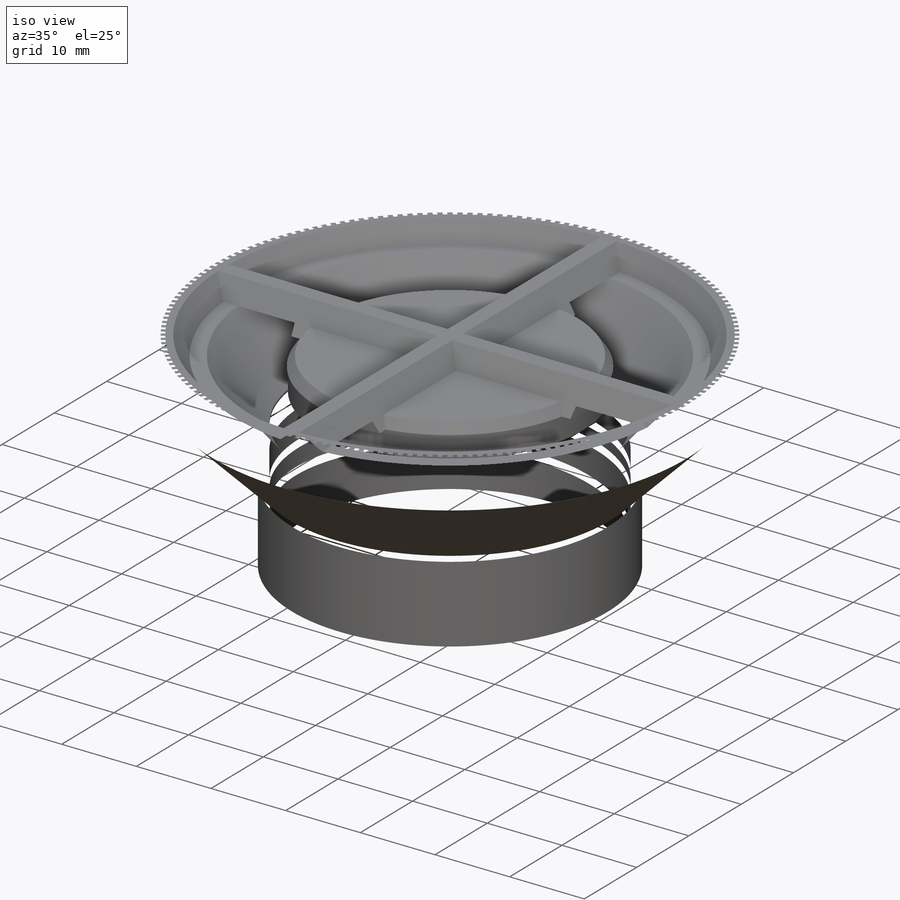
[diagram: iso view]
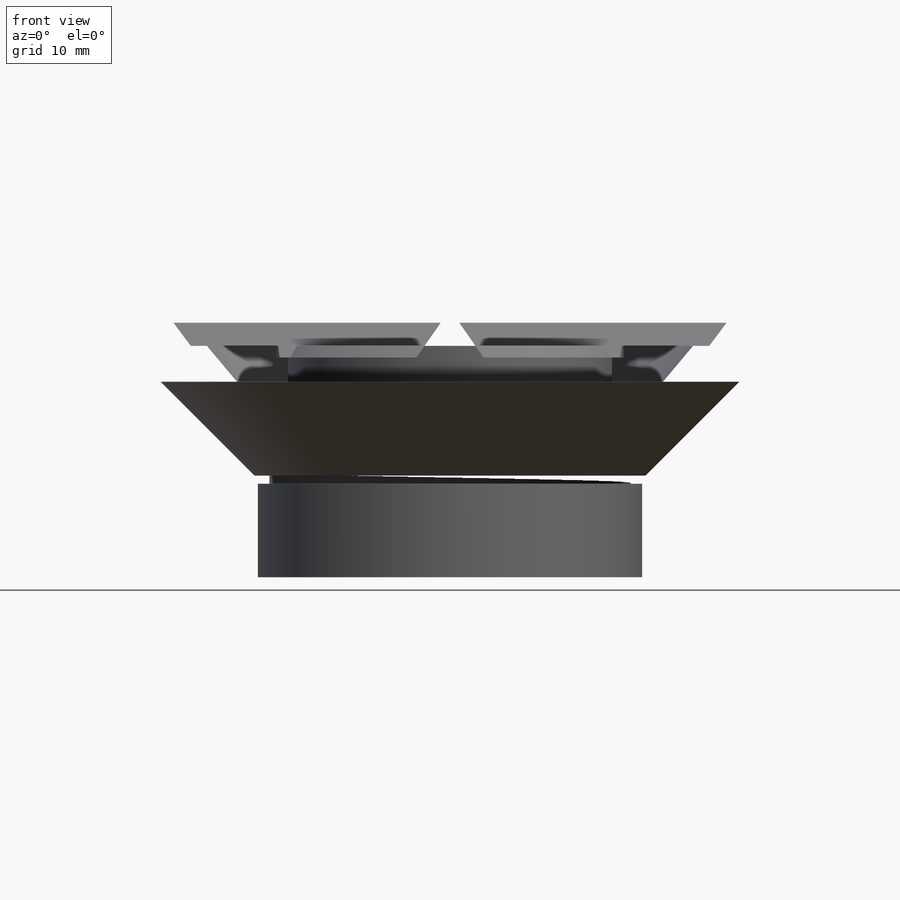
[diagram: front view]
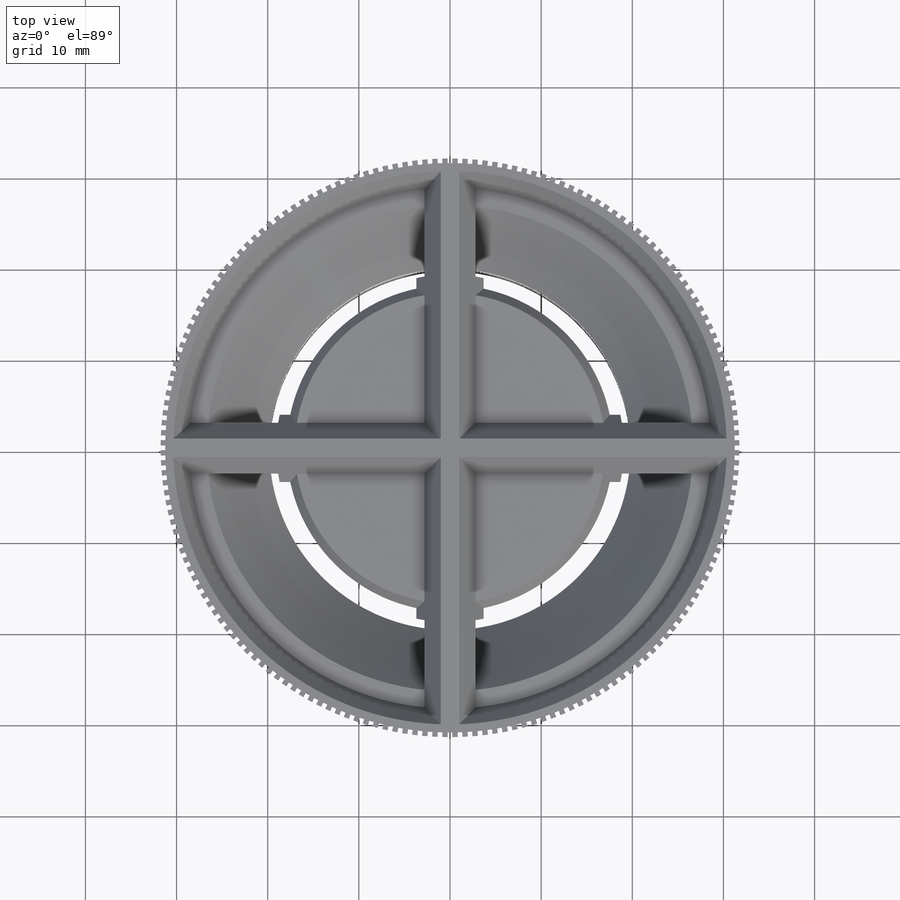
[diagram: top view]
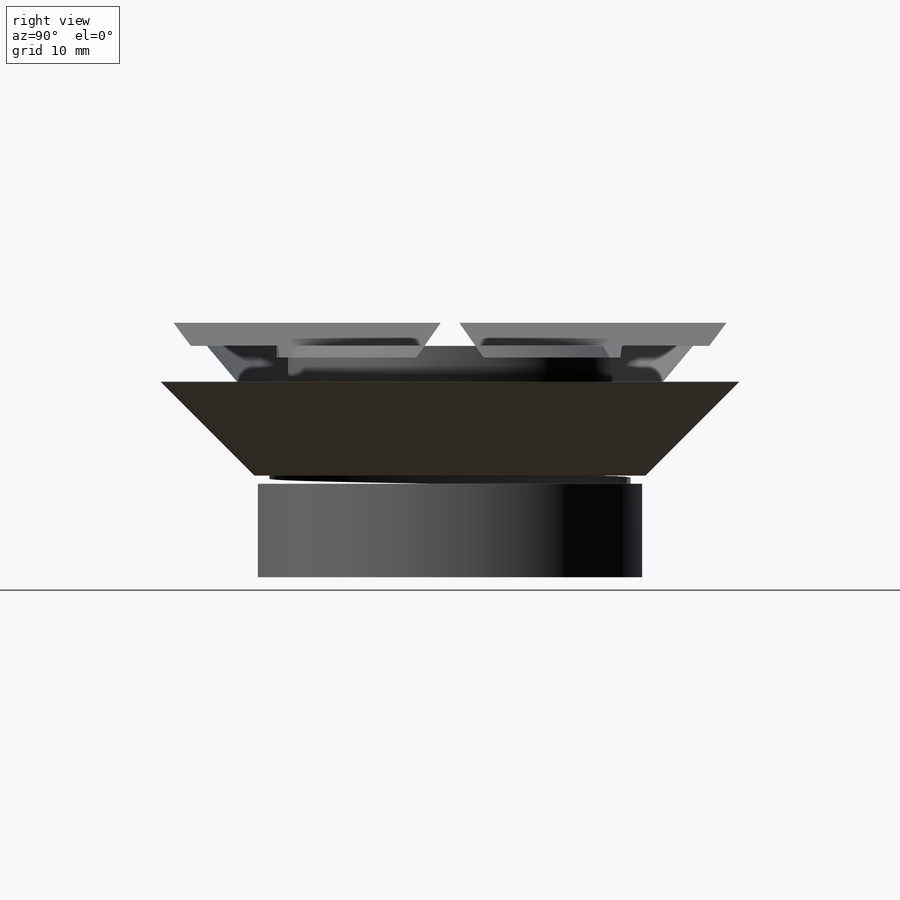
[diagram: right view]
SOLIDWORKS PART (.sldprt)
format: sldprt  version: not decoded by parser v0  size: 2,100,224 bytes
history: native  units: mm
features: sketch x17, cut_extrude x4, sweep x4, fillet x3, plane x3, revolve x2, helix x2, pattern_circular x2, material x1, chamfer x1, cut_revolve x1, extrude x1 (+13 scaffold rows collapsed)
feature tree (54):
  scaffold x13  (default folders/planes/origin — collapsed)
  material  "Material <not specified>"
  sketch  "Sketch1"  dims[c1.D1=31.75mm c1.D2=7.62mm c1.D3=~0.033237mm c2.D3=125.0deg c2.D4=~0.323467mm c3.D4=135.0deg c3.D5=10.16mm c3.D6=0.2mm c3.D3=10.16mm c4.D6=~0.030156mm c4.D7=~0.789687mm c5.D6=19.05mm c5.D7=12.7mm c5.D8=10.16mm c6.D8=125.0deg c6.D9=6.35mm c6.D2=35.56mm c6.D3=3.175mm c6.D5=7.62mm c6.D6=0.508mm c7.D5=2.54mm c7.D8=~17.716231mm c8.D8=40.0deg c8.D9=7.62mm c8.D10=1.524mm c8.D11=28.575mm c8.D6=15.24mm c9.D9=0.508mm c9.D12=7.62mm c9.D13=0.8255mm c9.D10=25.273mm c10.D9=1.27mm c10.D13=1.27mm c10.D10=2.032mm c10.D11=7.62mm c10.D14=6.985mm]
  revolve  "Revolve1"  Angle=360deg
  sketch  "Sketch2"  dims[D1=7.874mm D2=1.016mm D3=1.016mm D4=1.016mm D5=1.016mm]
  cut_extrude  "Cut-Extrude1"  Depth=2.54mm
  chamfer  "Chamfer1"  Distance=2.032mm Angle=55deg
  fillet  "Fillet1"  Radius=1.27mm
  sketch  "Sketch4"  dims[c1.D1=0.508mm c1.D2=0.508mm c2.D1=0.762mm c2.D2=0.254mm c2.D3=3.175mm c2.D4=0.762mm c3.D4=135.0deg]
  revolve  "Revolve2"  Angle=360deg
  sketch  "Sketch5"  dims[c1.D1=0.4318mm c1.D2=1.27mm c1.D3=~1.298082mm c2.D3=110.0deg c2.D4=0.4318mm c3.D4=110.0deg c3.D5=~1.616221mm c3.D1=1.016mm c3.D2=0.7366mm c4.D5=1.016mm]
  plane  "Plane1"
  sketch  "Sketch6"
  helix  "Helix/Spiral1"  Pitch=5.08mm
  sweep  "Sweep1"
  sketch  "Sketch7"  dims[D1=0.0mm]
  sketch  "Sketch8"  dims[c1.D1=3.175mm c1.D2=~2.080034mm c2.D2=30.0deg]
  sweep  "Sweep2"
  sketch  "Sketch9"  dims[D1=0.0mm]
  plane  "Plane2"
  sketch  "Sketch11"  dims[c1.D1=3.175mm c1.D2=2.3675mm c2.D2=30.0deg c2.D1=3.175mm c3.D2=3.175mm c4.D2=30.0deg c4.D1=3.175mm c5.D2=3.175mm c6.D2=30.0deg]
  sweep  "Sweep3"
  pattern_circular  "CirPattern1"  Count=3 Angle=120deg
  sketch  "Sketch12"  dims[D1=6.35mm D2=63.5mm D3=25.4mm D4=7.62mm]
  cut_revolve  "Cut-Revolve1"  Angle=360deg
  sketch  "Sketch13"  dims[D1=0.508mm D2=31.242mm D3=2.54mm]
  cut_extrude  "Cut-Extrude2"  Depth=6.35mm
  pattern_circular  "CirPattern2"  Count=180 Angle=2deg
  sketch  "Sketch14"  dims[c1.D1=35.56mm c1.D2=38.1mm c2.D1=35.56mm c2.D2=38.1mm c3.D1=0.0mm]
  cut_extrude  "Cut-Extrude3"  Depth=8.89mm
  sketch  "Sketch16"  dims[D1=0.0mm]
  cut_extrude  "Cut-Extrude5"  Depth=5.8674mm
  sketch  "Sketch18"  dims[D1=0.0mm]
  extrude  "Boss-Extrude1"  Depth=3.16mm
  sketch  "Sketch19"  dims[D1=~29.932382mm]
  plane  "Plane3"  Offset=2.159mm
  sketch  "Sketch20"
  helix  "Helix/Spiral2"  Pitch=5.9055mm
  sketch  "Sketch21"  dims[c1.D1=1.016mm c1.D2=0.762mm c2.D2=70.0deg c3.D2=~0.810903mm c4.D2=110.0deg c4.D3=0.762mm c5.D3=110.0deg c5.D4=~0.277345mm c5.D5=0.762mm c5.D6=39.243mm c5.D7=19.812mm c5.D8=~0.461309mm c6.D8=90.0deg c6.D6=24.13mm]
  sweep  "Sweep4"
  fillet  "Fillet2"  Radius=7.62mm
  fillet  "Fillet3"  Radius=7.62mm
decode coverage: 31 of 37 modeling features carry decoded parameters
note: ~ marks probable driven/reference dimensions
summary: profile_refs inferred from adjacent sketches, not decoded
note: suppression state not decoded; provenance and decode notes live in map.json
